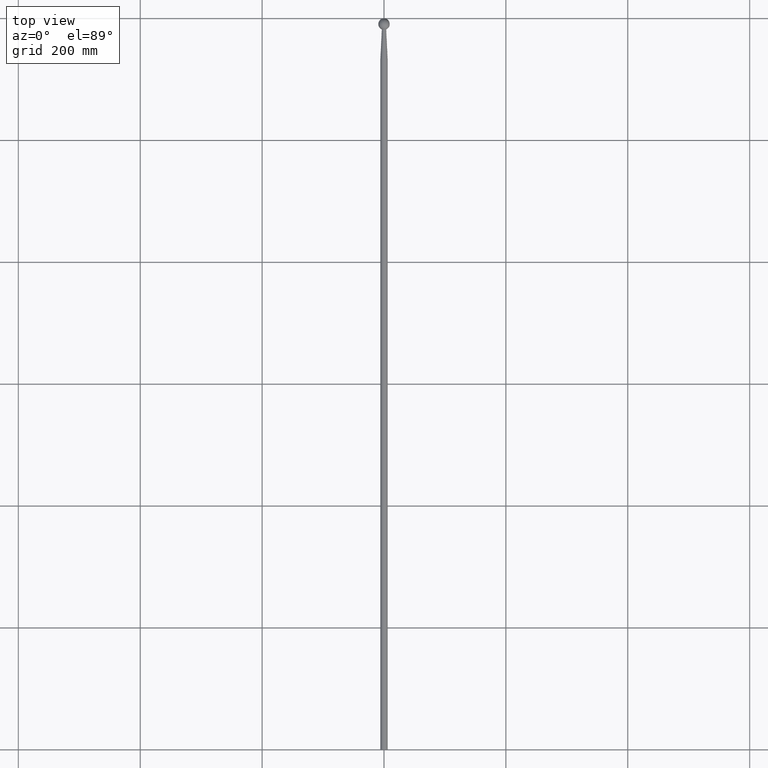
[diagram: clean part render]
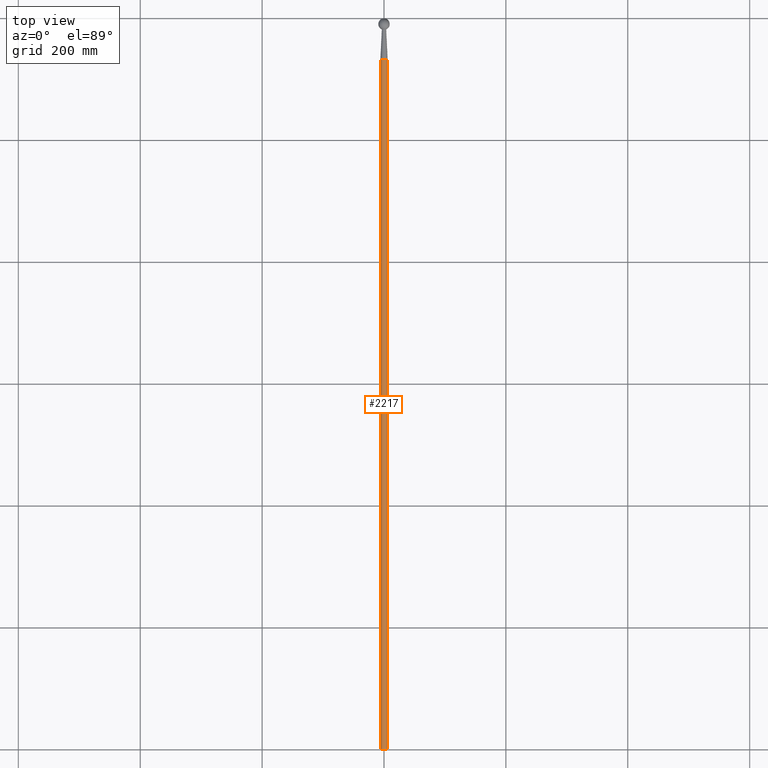
[diagram: same view with one face highlighted and labeled with its STEP entity id]
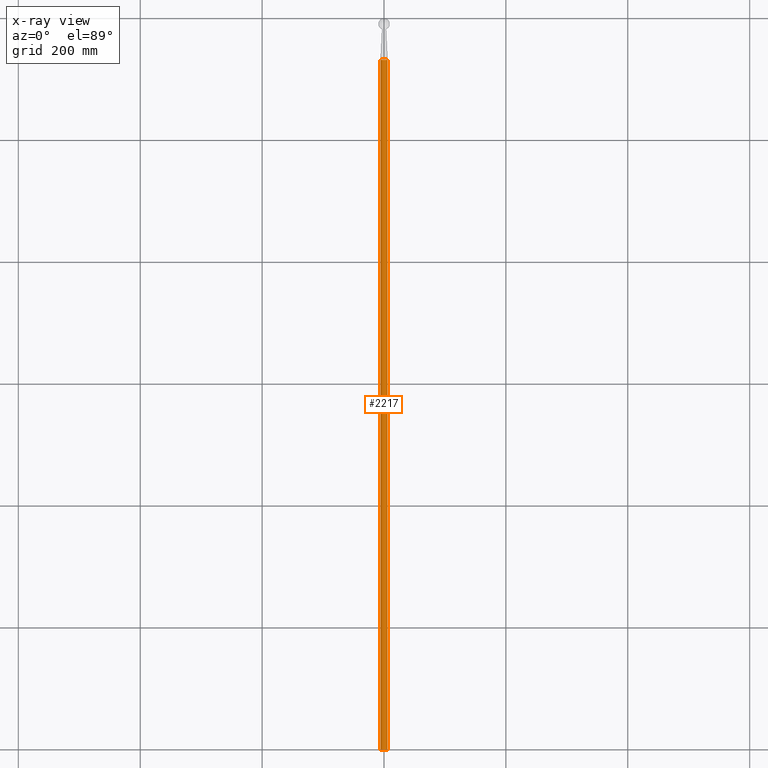
[diagram: x-ray of the same camera — body ghosted, the highlighted face saturated]
A machine part, top view. The second image highlights one B-rep face of the part: STEP entity #2217.
The next image is the same camera in x-ray: the body ghosted, the highlighted face saturated — about 0% of this face is hidden behind the body in this view.
In plain terms, the highlighted cylindrical surface (bore or boss wall) has radius 6 mm, axis along (-0, -1, -0).
Its self-contained STEP definition (entity closure, byte-faithful):
#40 = EDGE_CURVE ( 'NONE', #7367, #7367, #1812, .T. ) ;
#204 = DIRECTION ( 'NONE',  ( -0.000000000000000000, -1.000000000000000000, -0.000000000000000000 ) ) ;
#241 = DIRECTION ( 'NONE',  ( 0.000000000000000000, 0.000000000000000000, -1.000000000000000000 ) ) ;
#626 = FACE_OUTER_BOUND ( 'NONE', #8855, .T. ) ;
#1812 = CIRCLE ( 'NONE', #6889, 6.000000000000000000 ) ;
#1970 = DIRECTION ( 'NONE',  ( 0.000000000000000000, 0.000000000000000000, -1.000000000000000000 ) ) ;
#2217 = ADVANCED_FACE ( 'NONE', ( #4786, #626 ), #2666, .T. ) ;
#2324 = DIRECTION ( 'NONE',  ( 0.000000000000000000, 0.000000000000000000, -1.000000000000000000 ) ) ;
#2666 = CYLINDRICAL_SURFACE ( 'NONE', #9205, 6.000000000000000000 ) ;
#2826 = CARTESIAN_POINT ( 'NONE',  ( 0.000000000000000000, 0.000000000000000000, 0.000000000000000000 ) ) ;
#3952 = CARTESIAN_POINT ( 'NONE',  ( 0.000000000000000000, 1131.668239133671932, -6.000000000000000000 ) ) ;
#4640 = AXIS2_PLACEMENT_3D ( 'NONE', #2826, #204, #241 ) ;
#4704 = CARTESIAN_POINT ( 'NONE',  ( 0.000000000000000000, 1131.668239133671932, 0.000000000000000000 ) ) ;
#4786 = FACE_OUTER_BOUND ( 'NONE', #5091, .T. ) ;
#5091 = EDGE_LOOP ( 'NONE', ( #8031 ) ) ;
#5281 = CIRCLE ( 'NONE', #4640, 6.000000000000000000 ) ;
#5412 = CARTESIAN_POINT ( 'NONE',  ( 0.000000000000000000, 0.000000000000000000, 0.000000000000000000 ) ) ;
#5483 = EDGE_CURVE ( 'NONE', #9669, #9669, #5281, .T. ) ;
#6889 = AXIS2_PLACEMENT_3D ( 'NONE', #4704, #9176, #2324 ) ;
#7367 = VERTEX_POINT ( 'NONE', #3952 ) ;
#8031 = ORIENTED_EDGE ( 'NONE', *, *, #40, .T. ) ;
#8855 = EDGE_LOOP ( 'NONE', ( #10405 ) ) ;
#8866 = DIRECTION ( 'NONE',  ( -0.000000000000000000, -1.000000000000000000, -0.000000000000000000 ) ) ;
#9176 = DIRECTION ( 'NONE',  ( -0.000000000000000000, -1.000000000000000000, -0.000000000000000000 ) ) ;
#9205 = AXIS2_PLACEMENT_3D ( 'NONE', #5412, #8866, #1970 ) ;
#9669 = VERTEX_POINT ( 'NONE', #9837 ) ;
#9837 = CARTESIAN_POINT ( 'NONE',  ( 0.000000000000000000, 0.000000000000000000, -6.000000000000000000 ) ) ;
#10405 = ORIENTED_EDGE ( 'NONE', *, *, #5483, .F. ) ;